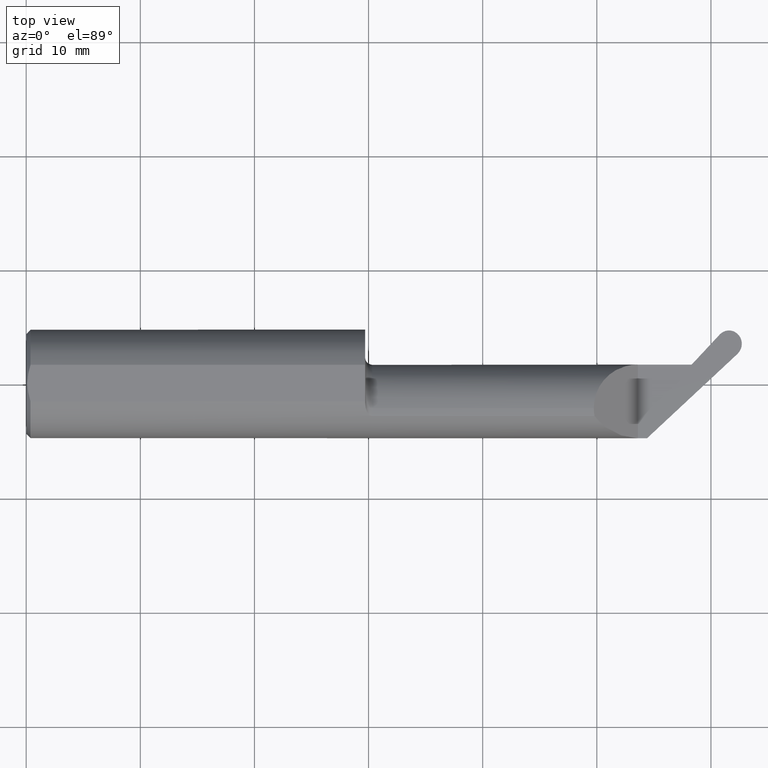
[diagram: clean part render]
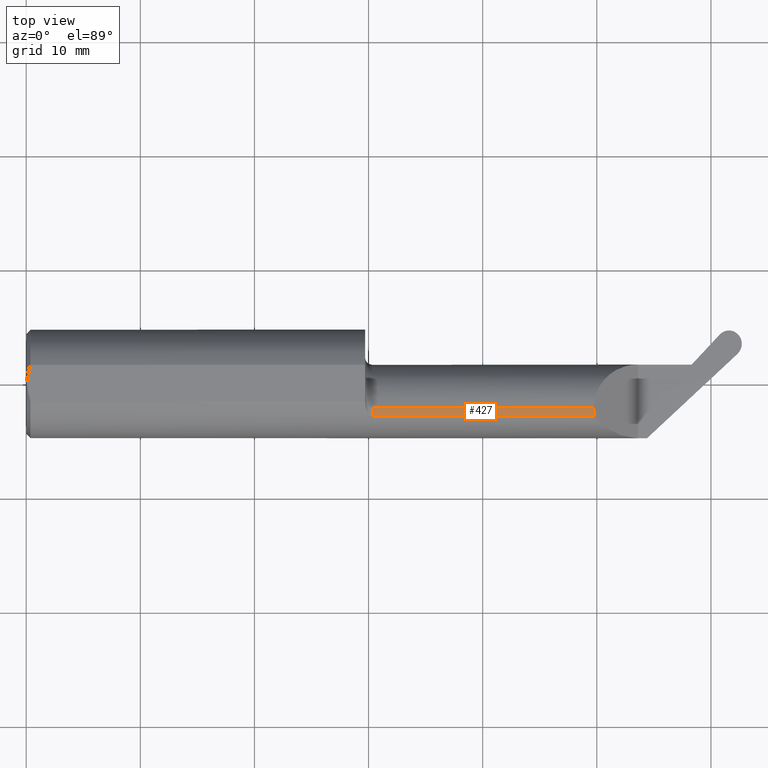
[diagram: same view with one face highlighted and labeled with its STEP entity id]
A machine part, top view. The second image highlights one B-rep face of the part: STEP entity #427.
In plain terms, the highlighted cylindrical surface (partial cylindrical patch) has radius 3.8608 mm, axis along (-1, -0, -0).
Its self-contained STEP definition (entity closure, byte-faithful):
#49 = CARTESIAN_POINT ( 'NONE',  ( 1.958844637866757887, -0.1038401262696877214, 0.1511553621332437647 ) ) ;
#52 = CIRCLE ( 'NONE', #352, 0.1519999999999993856 ) ;
#103 = VERTEX_POINT ( 'NONE', #620 ) ;
#121 = ORIENTED_EDGE ( 'NONE', *, *, #181, .T. ) ;
#126 = CARTESIAN_POINT ( 'NONE',  ( 1.169000000000000039, -0.08534999999999998144, 0.1519999999999996632 ) ) ;
#131 = LINE ( 'NONE', #768, #670 ) ;
#149 = VERTEX_POINT ( 'NONE', #497 ) ;
#169 = CARTESIAN_POINT ( 'NONE',  ( 1.958000000000002405, -0.08534999999999998144, 0.1519999999999996632 ) ) ;
#177 = DIRECTION ( 'NONE',  ( 0.000000000000000000, 0.000000000000000000, 1.000000000000000000 ) ) ;
#181 = EDGE_CURVE ( 'NONE', #623, #149, #131, .T. ) ;
#221 = EDGE_CURVE ( 'NONE', #425, #103, #763, .T. ) ;
#234 = DIRECTION ( 'NONE',  ( 0.000000000000000000, 0.000000000000000000, 1.000000000000000000 ) ) ;
#235 = ORIENTED_EDGE ( 'NONE', *, *, #479, .F. ) ;
#237 = CARTESIAN_POINT ( 'NONE',  ( 1.958000000000002405, -0.08534999999999998144, 0.1519999999999996632 ) ) ;
#240 = DIRECTION ( 'NONE',  ( -1.000000000000000000, -0.000000000000000000, -0.000000000000000000 ) ) ;
#252 = DIRECTION ( 'NONE',  ( -1.000000000000000000, -0.000000000000000000, -0.000000000000000000 ) ) ;
#262 = VECTOR ( 'NONE', #252, 39.37007874015748143 ) ;
#279 = CARTESIAN_POINT ( 'NONE',  ( 1.193999999999999950, -0.1129504686584657108, 0.1494731217638571308 ) ) ;
#351 = CYLINDRICAL_SURFACE ( 'NONE', #779, 0.1519999999999996632 ) ;
#352 = AXIS2_PLACEMENT_3D ( 'NONE', #749, #413, #177 ) ;
#390 = EDGE_CURVE ( 'NONE', #149, #425, #491, .T. ) ;
#413 = DIRECTION ( 'NONE',  ( -1.000000000000000000, -0.000000000000000000, -0.000000000000000000 ) ) ;
#414 = ORIENTED_EDGE ( 'NONE', *, *, #221, .T. ) ;
#425 = VERTEX_POINT ( 'NONE', #237 ) ;
#427 = ADVANCED_FACE ( 'NONE', ( #609 ), #351, .T. ) ;
#479 = EDGE_CURVE ( 'NONE', #623, #103, #52, .T. ) ;
#491 =( BOUNDED_CURVE ( )  B_SPLINE_CURVE ( 3, ( #612, #49, #681, #169 ),
 .UNSPECIFIED., .F., .T. ) 
 B_SPLINE_CURVE_WITH_KNOTS ( ( 4, 4 ),
 ( 6.100590318874937523, 6.283185307179586232 ),
 .UNSPECIFIED. ) 
 CURVE ( )  GEOMETRIC_REPRESENTATION_ITEM ( )  RATIONAL_B_SPLINE_CURVE ( ( 1.000000000000000000, 0.9972235185427065218, 0.9972235185427065218, 1.000000000000000000 ) ) 
 REPRESENTATION_ITEM ( '' )  );
#497 = CARTESIAN_POINT ( 'NONE',  ( 1.960526878236144244, -0.1129504686584656276, 0.1494731217638574639 ) ) ;
#503 = EDGE_LOOP ( 'NONE', ( #757, #414, #235, #121 ) ) ;
#542 = CARTESIAN_POINT ( 'NONE',  ( 1.169000000000000039, -0.08534999999999998144, 0.000000000000000000 ) ) ;
#609 = FACE_OUTER_BOUND ( 'NONE', #503, .T. ) ;
#612 = CARTESIAN_POINT ( 'NONE',  ( 1.960526878236144244, -0.1129504686584656276, 0.1494731217638574639 ) ) ;
#620 = CARTESIAN_POINT ( 'NONE',  ( 1.193999999999999950, -0.08534999999999998144, 0.1519999999999993856 ) ) ;
#623 = VERTEX_POINT ( 'NONE', #279 ) ;
#670 = VECTOR ( 'NONE', #705, 39.37007874015748143 ) ;
#681 = CARTESIAN_POINT ( 'NONE',  ( 1.958000000000001961, -0.09461435486697029884, 0.1519999999999996632 ) ) ;
#705 = DIRECTION ( 'NONE',  ( 1.000000000000000000, 0.000000000000000000, 0.000000000000000000 ) ) ;
#749 = CARTESIAN_POINT ( 'NONE',  ( 1.193999999999999950, -0.08534999999999998144, 0.000000000000000000 ) ) ;
#757 = ORIENTED_EDGE ( 'NONE', *, *, #390, .T. ) ;
#763 = LINE ( 'NONE', #126, #262 ) ;
#768 = CARTESIAN_POINT ( 'NONE',  ( 1.744749092623466558, -0.1129504686584656831, 0.1494731217638574639 ) ) ;
#779 = AXIS2_PLACEMENT_3D ( 'NONE', #542, #240, #234 ) ;